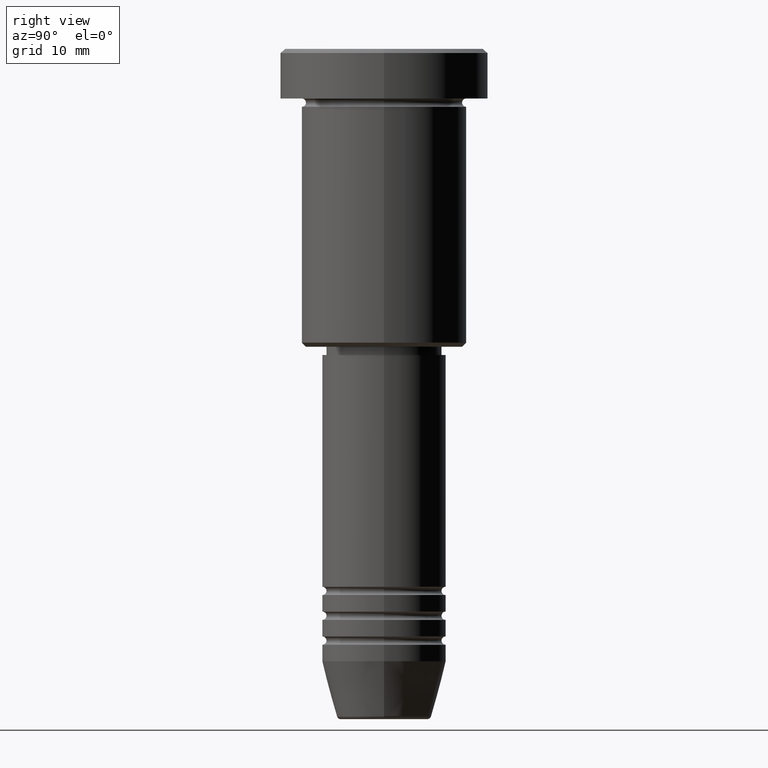
[diagram: clean part render]
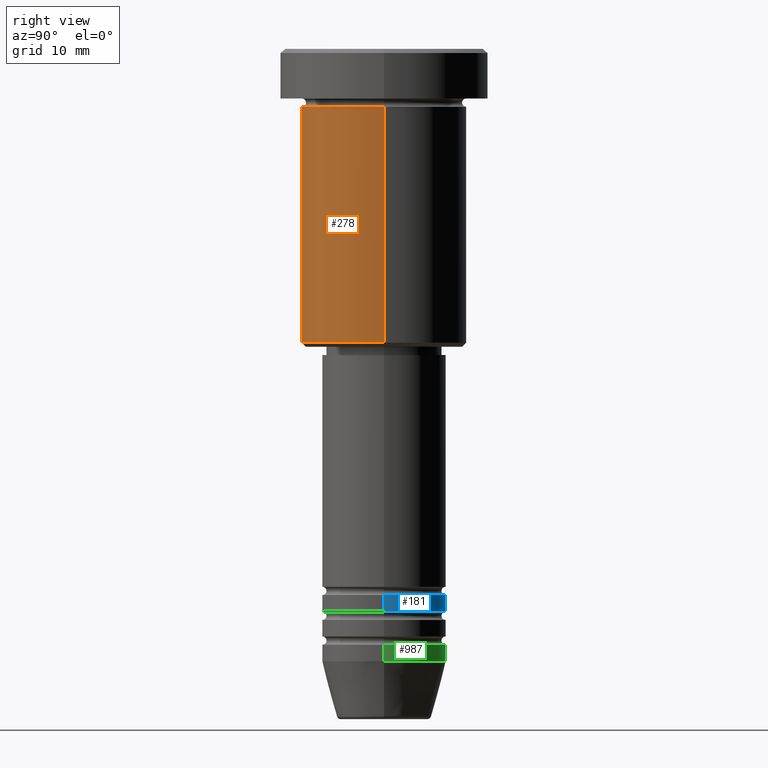
[diagram: same view with three faces highlighted in distinct colors, each labeled with its STEP entity id]
A machine part, right view with three faces highlighted in distinct colors.
Their STEP definitions:

[orange] entity #278 — the highlighted cylindrical surface (partial cylindrical patch) has radius 10 mm, axis along (-0, -0, 1).
#87 = CARTESIAN_POINT ( 'NONE',  ( 0.000000000000000000, 0.000000000000000000, -35.50000000000000000 ) ) ;
#109 = EDGE_CURVE ( 'NONE', #876, #558, #798, .T. ) ;
#110 = EDGE_CURVE ( 'NONE', #1155, #923, #726, .T. ) ;
#121 = ORIENTED_EDGE ( 'NONE', *, *, #110, .F. ) ;
#129 = EDGE_LOOP ( 'NONE', ( #121, #908, #648, #389 ) ) ;
#163 = EDGE_CURVE ( 'NONE', #1155, #876, #604, .T. ) ;
#183 = DIRECTION ( 'NONE',  ( -0.000000000000000000, -0.000000000000000000, 1.000000000000000000 ) ) ;
#278 = ADVANCED_FACE ( 'NONE', ( #653 ), #634, .T. ) ;
#298 = CARTESIAN_POINT ( 'NONE',  ( -10.00000000000000000, 1.224646799147353256E-15, -35.50000000000000000 ) ) ;
#349 = CARTESIAN_POINT ( 'NONE',  ( 10.00000000000000000, 0.000000000000000000, 0.000000000000000000 ) ) ;
#359 = DIRECTION ( 'NONE',  ( -1.000000000000000000, 0.000000000000000000, 0.000000000000000000 ) ) ;
#389 = ORIENTED_EDGE ( 'NONE', *, *, #432, .F. ) ;
#411 = DIRECTION ( 'NONE',  ( -0.000000000000000000, -0.000000000000000000, 1.000000000000000000 ) ) ;
#413 = AXIS2_PLACEMENT_3D ( 'NONE', #694, #411, #879 ) ;
#432 = EDGE_CURVE ( 'NONE', #923, #558, #624, .T. ) ;
#523 = CARTESIAN_POINT ( 'NONE',  ( -10.00000000000000000, 1.224646799147353256E-15, 0.000000000000000000 ) ) ;
#549 = DIRECTION ( 'NONE',  ( 1.000000000000000000, 0.000000000000000000, 0.000000000000000000 ) ) ;
#558 = VERTEX_POINT ( 'NONE', #965 ) ;
#596 = CARTESIAN_POINT ( 'NONE',  ( 10.00000000000000000, 0.000000000000000000, -35.50000000000000000 ) ) ;
#604 = CIRCLE ( 'NONE', #752, 10.00000000000000000 ) ;
#624 = CIRCLE ( 'NONE', #413, 10.00000000000000000 ) ;
#634 = CYLINDRICAL_SURFACE ( 'NONE', #720, 10.00000000000000000 ) ;
#648 = ORIENTED_EDGE ( 'NONE', *, *, #109, .T. ) ;
#653 = FACE_OUTER_BOUND ( 'NONE', #129, .T. ) ;
#679 = VECTOR ( 'NONE', #1100, 1000.000000000000000 ) ;
#694 = CARTESIAN_POINT ( 'NONE',  ( 0.000000000000000000, 0.000000000000000000, -6.999999999999996447 ) ) ;
#720 = AXIS2_PLACEMENT_3D ( 'NONE', #1009, #183, #549 ) ;
#726 = LINE ( 'NONE', #523, #679 ) ;
#752 = AXIS2_PLACEMENT_3D ( 'NONE', #87, #812, #359 ) ;
#798 = LINE ( 'NONE', #349, #1030 ) ;
#812 = DIRECTION ( 'NONE',  ( -0.000000000000000000, -0.000000000000000000, 1.000000000000000000 ) ) ;
#813 = CARTESIAN_POINT ( 'NONE',  ( -10.00000000000000000, 1.224646799147353256E-15, -6.999999999999996447 ) ) ;
#876 = VERTEX_POINT ( 'NONE', #596 ) ;
#879 = DIRECTION ( 'NONE',  ( 1.000000000000000000, 0.000000000000000000, 0.000000000000000000 ) ) ;
#908 = ORIENTED_EDGE ( 'NONE', *, *, #163, .T. ) ;
#923 = VERTEX_POINT ( 'NONE', #813 ) ;
#965 = CARTESIAN_POINT ( 'NONE',  ( 10.00000000000000000, 0.000000000000000000, -6.999999999999996447 ) ) ;
#989 = DIRECTION ( 'NONE',  ( -0.000000000000000000, -0.000000000000000000, 1.000000000000000000 ) ) ;
#1009 = CARTESIAN_POINT ( 'NONE',  ( 0.000000000000000000, 0.000000000000000000, 0.000000000000000000 ) ) ;
#1030 = VECTOR ( 'NONE', #989, 1000.000000000000000 ) ;
#1100 = DIRECTION ( 'NONE',  ( -0.000000000000000000, -0.000000000000000000, 1.000000000000000000 ) ) ;
#1155 = VERTEX_POINT ( 'NONE', #298 ) ;

[blue] entity #181 — the highlighted cylindrical surface (partial cylindrical patch) has radius 7.5 mm, axis along (-0, -0, 1).
#48 = ORIENTED_EDGE ( 'NONE', *, *, #969, .T. ) ;
#59 = LINE ( 'NONE', #972, #563 ) ;
#65 = EDGE_CURVE ( 'NONE', #136, #725, #1010, .T. ) ;
#71 = VERTEX_POINT ( 'NONE', #1007 ) ;
#111 = AXIS2_PLACEMENT_3D ( 'NONE', #731, #1008, #1105 ) ;
#136 = VERTEX_POINT ( 'NONE', #632 ) ;
#152 = CIRCLE ( 'NONE', #111, 7.500000000000000000 ) ;
#174 = DIRECTION ( 'NONE',  ( -0.000000000000000000, -0.000000000000000000, 1.000000000000000000 ) ) ;
#181 = ADVANCED_FACE ( 'NONE', ( #461 ), #826, .T. ) ;
#260 = EDGE_CURVE ( 'NONE', #71, #725, #281, .T. ) ;
#281 = LINE ( 'NONE', #1116, #831 ) ;
#404 = CARTESIAN_POINT ( 'NONE',  ( 7.500000000000000000, 0.000000000000000000, -67.99999999999997158 ) ) ;
#448 = EDGE_CURVE ( 'NONE', #573, #136, #59, .T. ) ;
#458 = CARTESIAN_POINT ( 'NONE',  ( 0.000000000000000000, 0.000000000000000000, -65.99999999999997158 ) ) ;
#461 = FACE_OUTER_BOUND ( 'NONE', #661, .T. ) ;
#484 = DIRECTION ( 'NONE',  ( -0.000000000000000000, -0.000000000000000000, 1.000000000000000000 ) ) ;
#563 = VECTOR ( 'NONE', #484, 1000.000000000000000 ) ;
#573 = VERTEX_POINT ( 'NONE', #404 ) ;
#582 = AXIS2_PLACEMENT_3D ( 'NONE', #458, #174, #614 ) ;
#614 = DIRECTION ( 'NONE',  ( 1.000000000000000000, 0.000000000000000000, 0.000000000000000000 ) ) ;
#632 = CARTESIAN_POINT ( 'NONE',  ( 7.500000000000000000, 0.000000000000000000, -65.99999999999997158 ) ) ;
#658 = AXIS2_PLACEMENT_3D ( 'NONE', #942, #740, #732 ) ;
#661 = EDGE_LOOP ( 'NONE', ( #48, #867, #1104, #1099 ) ) ;
#725 = VERTEX_POINT ( 'NONE', #963 ) ;
#731 = CARTESIAN_POINT ( 'NONE',  ( 0.000000000000000000, 0.000000000000000000, -67.99999999999997158 ) ) ;
#732 = DIRECTION ( 'NONE',  ( 1.000000000000000000, 0.000000000000000000, 0.000000000000000000 ) ) ;
#740 = DIRECTION ( 'NONE',  ( -0.000000000000000000, -0.000000000000000000, 1.000000000000000000 ) ) ;
#826 = CYLINDRICAL_SURFACE ( 'NONE', #658, 7.500000000000000000 ) ;
#831 = VECTOR ( 'NONE', #922, 1000.000000000000000 ) ;
#867 = ORIENTED_EDGE ( 'NONE', *, *, #260, .T. ) ;
#922 = DIRECTION ( 'NONE',  ( -0.000000000000000000, -0.000000000000000000, 1.000000000000000000 ) ) ;
#942 = CARTESIAN_POINT ( 'NONE',  ( 0.000000000000000000, 0.000000000000000000, 0.000000000000000000 ) ) ;
#963 = CARTESIAN_POINT ( 'NONE',  ( -7.500000000000000000, 9.184850993605147944E-16, -65.99999999999997158 ) ) ;
#969 = EDGE_CURVE ( 'NONE', #573, #71, #152, .T. ) ;
#972 = CARTESIAN_POINT ( 'NONE',  ( 7.500000000000000000, 0.000000000000000000, 0.000000000000000000 ) ) ;
#1007 = CARTESIAN_POINT ( 'NONE',  ( -7.500000000000000000, 9.184850993605147944E-16, -67.99999999999997158 ) ) ;
#1008 = DIRECTION ( 'NONE',  ( -0.000000000000000000, -0.000000000000000000, 1.000000000000000000 ) ) ;
#1010 = CIRCLE ( 'NONE', #582, 7.500000000000000000 ) ;
#1099 = ORIENTED_EDGE ( 'NONE', *, *, #448, .F. ) ;
#1104 = ORIENTED_EDGE ( 'NONE', *, *, #65, .F. ) ;
#1105 = DIRECTION ( 'NONE',  ( 1.000000000000000000, 0.000000000000000000, 0.000000000000000000 ) ) ;
#1116 = CARTESIAN_POINT ( 'NONE',  ( -7.500000000000000000, 9.184850993605147944E-16, 0.000000000000000000 ) ) ;

[green] entity #987 — the highlighted cylindrical surface (partial cylindrical patch) has radius 7.5 mm, axis along (-0, -0, 1).
#22 = LINE ( 'NONE', #1122, #1132 ) ;
#32 = CIRCLE ( 'NONE', #703, 7.500000000000000000 ) ;
#161 = DIRECTION ( 'NONE',  ( 1.000000000000000000, 0.000000000000000000, 0.000000000000000000 ) ) ;
#267 = AXIS2_PLACEMENT_3D ( 'NONE', #1144, #1053, #1071 ) ;
#269 = EDGE_LOOP ( 'NONE', ( #505, #275, #385, #673 ) ) ;
#275 = ORIENTED_EDGE ( 'NONE', *, *, #277, .T. ) ;
#277 = EDGE_CURVE ( 'NONE', #701, #1072, #22, .T. ) ;
#279 = EDGE_CURVE ( 'NONE', #534, #1072, #32, .T. ) ;
#295 = CARTESIAN_POINT ( 'NONE',  ( 7.500000000000000000, 0.000000000000000000, -74.00000000000000000 ) ) ;
#297 = DIRECTION ( 'NONE',  ( -0.000000000000000000, -0.000000000000000000, 1.000000000000000000 ) ) ;
#304 = CARTESIAN_POINT ( 'NONE',  ( 7.500000000000000000, 0.000000000000000000, 0.000000000000000000 ) ) ;
#329 = DIRECTION ( 'NONE',  ( -0.000000000000000000, -0.000000000000000000, 1.000000000000000000 ) ) ;
#348 = DIRECTION ( 'NONE',  ( -0.000000000000000000, -0.000000000000000000, 1.000000000000000000 ) ) ;
#385 = ORIENTED_EDGE ( 'NONE', *, *, #279, .F. ) ;
#481 = EDGE_CURVE ( 'NONE', #697, #534, #577, .T. ) ;
#487 = CARTESIAN_POINT ( 'NONE',  ( -7.500000000000000000, 9.184850993605147944E-16, -74.00000000000000000 ) ) ;
#505 = ORIENTED_EDGE ( 'NONE', *, *, #765, .T. ) ;
#532 = FACE_OUTER_BOUND ( 'NONE', #269, .T. ) ;
#534 = VERTEX_POINT ( 'NONE', #1050 ) ;
#548 = VECTOR ( 'NONE', #329, 1000.000000000000000 ) ;
#577 = LINE ( 'NONE', #304, #548 ) ;
#633 = DIRECTION ( 'NONE',  ( 1.000000000000000000, 0.000000000000000000, 0.000000000000000000 ) ) ;
#673 = ORIENTED_EDGE ( 'NONE', *, *, #481, .F. ) ;
#697 = VERTEX_POINT ( 'NONE', #295 ) ;
#701 = VERTEX_POINT ( 'NONE', #487 ) ;
#703 = AXIS2_PLACEMENT_3D ( 'NONE', #958, #348, #161 ) ;
#711 = CYLINDRICAL_SURFACE ( 'NONE', #939, 7.500000000000000000 ) ;
#727 = DIRECTION ( 'NONE',  ( -0.000000000000000000, -0.000000000000000000, 1.000000000000000000 ) ) ;
#765 = EDGE_CURVE ( 'NONE', #697, #701, #997, .T. ) ;
#906 = CARTESIAN_POINT ( 'NONE',  ( 0.000000000000000000, 0.000000000000000000, 0.000000000000000000 ) ) ;
#939 = AXIS2_PLACEMENT_3D ( 'NONE', #906, #727, #633 ) ;
#958 = CARTESIAN_POINT ( 'NONE',  ( 0.000000000000000000, 0.000000000000000000, -72.00000000000000000 ) ) ;
#987 = ADVANCED_FACE ( 'NONE', ( #532 ), #711, .T. ) ;
#997 = CIRCLE ( 'NONE', #267, 7.500000000000000000 ) ;
#1025 = CARTESIAN_POINT ( 'NONE',  ( -7.500000000000000000, 9.184850993605147944E-16, -72.00000000000000000 ) ) ;
#1050 = CARTESIAN_POINT ( 'NONE',  ( 7.500000000000000000, 0.000000000000000000, -72.00000000000000000 ) ) ;
#1053 = DIRECTION ( 'NONE',  ( -0.000000000000000000, -0.000000000000000000, 1.000000000000000000 ) ) ;
#1071 = DIRECTION ( 'NONE',  ( 1.000000000000000000, 0.000000000000000000, 0.000000000000000000 ) ) ;
#1072 = VERTEX_POINT ( 'NONE', #1025 ) ;
#1122 = CARTESIAN_POINT ( 'NONE',  ( -7.500000000000000000, 9.184850993605147944E-16, 0.000000000000000000 ) ) ;
#1132 = VECTOR ( 'NONE', #297, 1000.000000000000000 ) ;
#1144 = CARTESIAN_POINT ( 'NONE',  ( 0.000000000000000000, 0.000000000000000000, -74.00000000000000000 ) ) ;